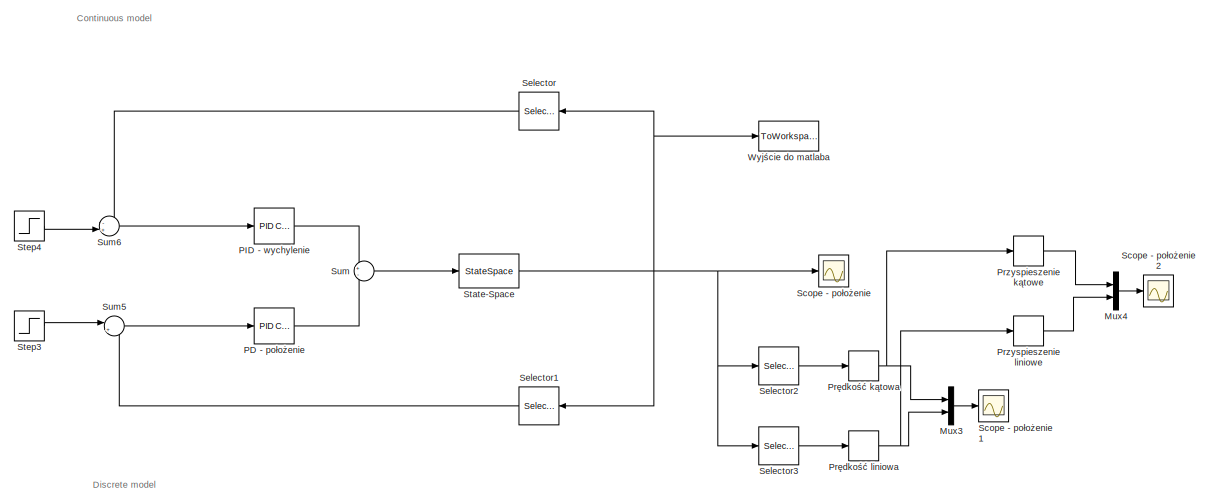
[diagram: root canvas - part 1/4, top center region]
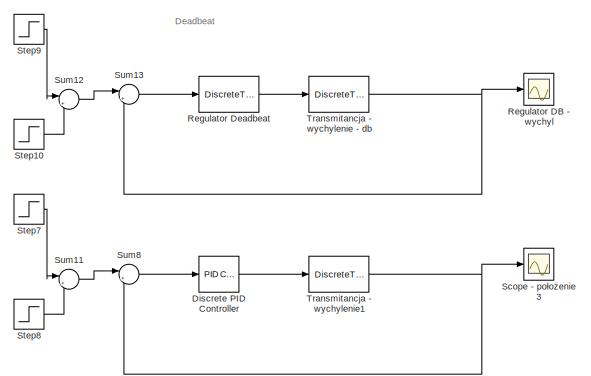
[diagram: root canvas - part 2/4, top right region]
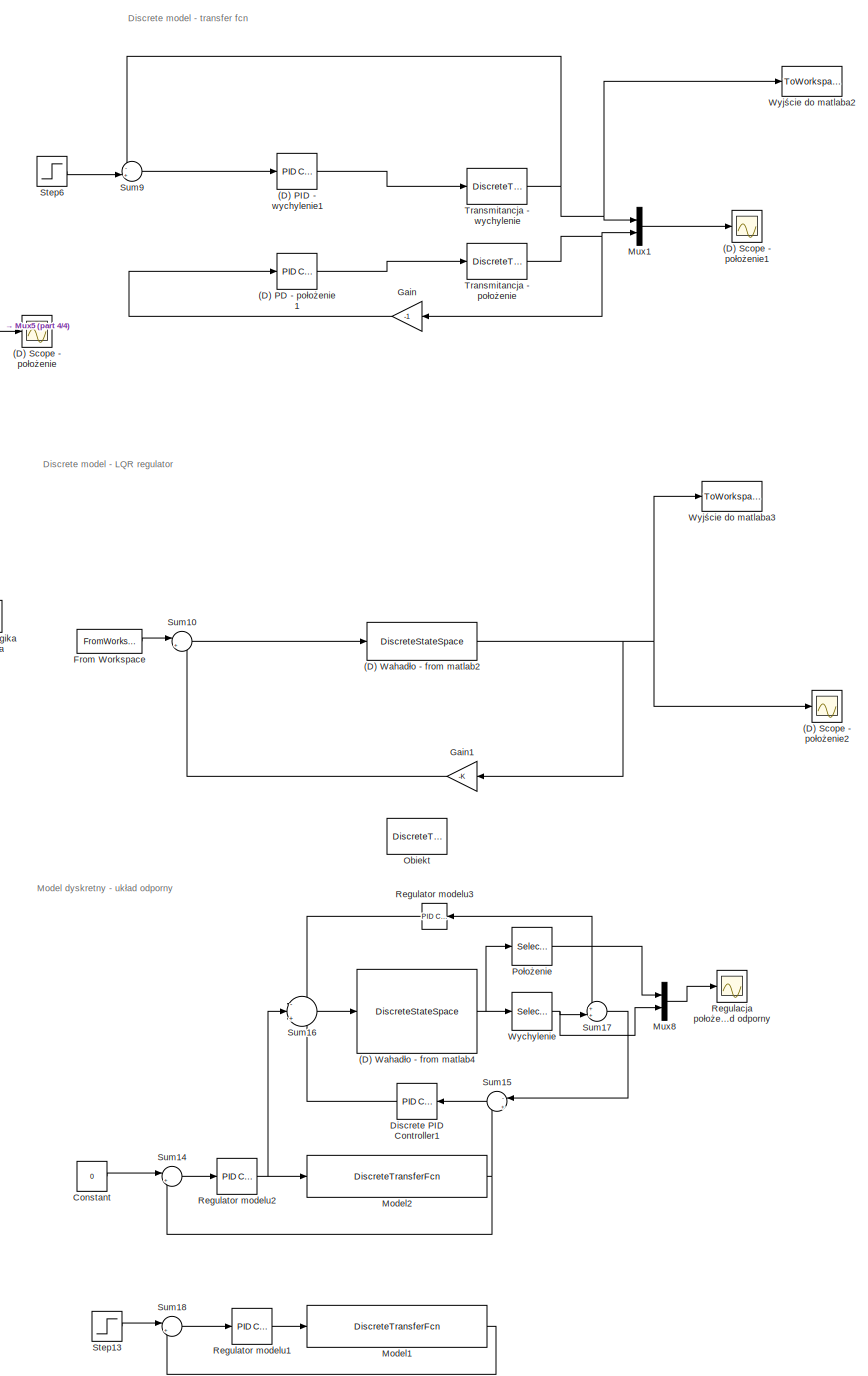
[diagram: root canvas - part 3/4, middle right region]
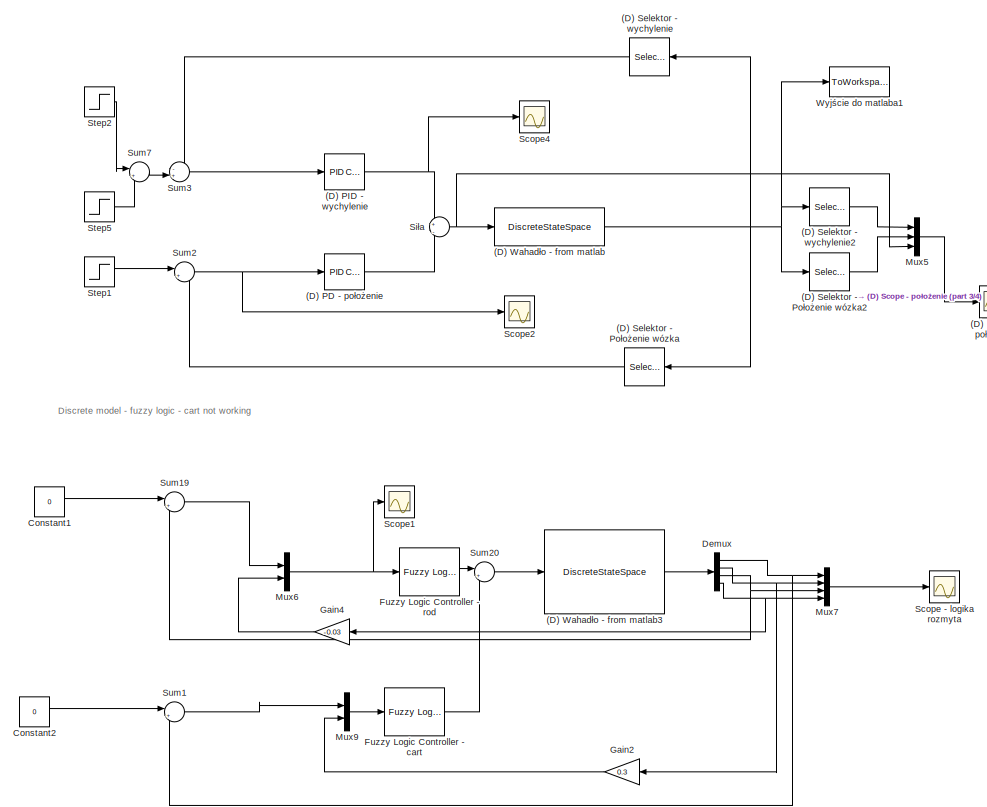
[diagram: root canvas - part 4/4, middle left region]
MODEL slx_b21ba78add9d
KIND model
CONFIG AbsTol = auto
CONFIG FixedStep = auto
CONFIG MaxStep = auto
CONFIG MinStep = auto
CONFIG RelTol = 1e-6
CONFIG SampleTimeConstraint = Unconstrained
CONFIG Solver = VariableStepAuto
CONFIG SolverMode = Auto
CONFIG SolverName = VariableStepAuto
CONFIG StartTime = 0.0
CONFIG StopTime = 50
BLOCK [Reference] (D) PD - położenie  REF=simulink/Continuous/PID Controller
  Ports = [1, 1]
  SourceBlock = simulink/Continuous/PID Controller
  SourceType = PID 1dof
BLOCK [Reference] (D) PD - położenie1  REF=simulink/Continuous/PID Controller
  Ports = [1, 1]
  SourceBlock = simulink/Continuous/PID Controller
  SourceType = PID 1dof
BLOCK [Reference] (D) PID - wychylenie  REF=simulink/Continuous/PID Controller
  Ports = [1, 1]
  SourceBlock = simulink/Continuous/PID Controller
  SourceType = PID 1dof
BLOCK [Reference] (D) PID - wychylenie1  REF=simulink/Continuous/PID Controller
  Ports = [1, 1]
  SourceBlock = simulink/Continuous/PID Controller
  SourceType = PID 1dof
BLOCK [Scope] (D) Scope - położenie
  Ports = [1]
  ScopeSpecificationString = Simulink.scopes.TimeScopeBlockCfg('CurrentConfiguration', extmgr.ConfigurationSet(extmgr.Configuration('Core','General UI',true),extmgr.Configuration('Core','Source UI',true),extmgr.Configuration('Sources','WiredSimulink',true),extmgr.Configuration('Visuals','Time Domain',true,'SerializedDisplays',{struct('MinYLimReal','-21.22504','MaxYLimReal','17.46773','YLabelReal','','MinYLimMag','0.00000','Ma...<+1471ch>
BLOCK [Scope] (D) Scope - położenie1
  Ports = [1]
  ScopeSpecificationString = Simulink.scopes.TimeScopeBlockCfg('CurrentConfiguration', extmgr.ConfigurationSet(extmgr.Configuration('Core','General UI',true),extmgr.Configuration('Core','Source UI',true),extmgr.Configuration('Sources','WiredSimulink',true,'DataLoggingVariableName','ScopeData3'),extmgr.Configuration('Visuals','Time Domain',true,'SerializedDisplays',{struct('MinYLimReal','-0.000000048','MaxYLimReal','0.00000000...<+1525ch>
BLOCK [Scope] (D) Scope - położenie2
  Ports = [1]
  ScopeSpecificationString = Simulink.scopes.TimeScopeBlockCfg('CurrentConfiguration', extmgr.ConfigurationSet(extmgr.Configuration('Core','General UI',true),extmgr.Configuration('Core','Source UI',true),extmgr.Configuration('Sources','WiredSimulink',true,'DataLoggingVariableName','ScopeData1'),extmgr.Configuration('Visuals','Time Domain',true,'SerializedDisplays',{struct('MinYLimReal','-3.85335','MaxYLimReal','1.69245','YLab...<+1560ch>
BLOCK [Selector] (D) Selektor - Położenie wózka
  IndexOptions = Index vector (dialog)
  Indices = 1
  InputPortWidth = 4
  OutputSizes = 1
  Ports = [1, 1]
BLOCK [Selector] (D) Selektor - Położenie wózka2
  IndexOptions = Index vector (dialog)
  Indices = 1
  InputPortWidth = 4
  OutputSizes = 1
  Ports = [1, 1]
BLOCK [Selector] (D) Selektor - wychylenie
  IndexOptions = Index vector (dialog)
  Indices = 3
  InputPortWidth = 4
  OutputSizes = 1
  Ports = [1, 1]
BLOCK [Selector] (D) Selektor - wychylenie2
  IndexOptions = Index vector (dialog)
  Indices = 3
  InputPortWidth = 4
  OutputSizes = 1
  Ports = [1, 1]
BLOCK [DiscreteStateSpace] (D) Wahadło - from matlab
  A = Ad
  B = Bd
  C = Cd
  D = Dd
  SampleTime = 0.01
  X0 = state0
BLOCK [DiscreteStateSpace] (D) Wahadło - from matlab2
  A = Ad
  B = Bd
  C = Cd
  D = Dd
  SampleTime = 0.01
  X0 = state0
BLOCK [DiscreteStateSpace] (D) Wahadło - from matlab3
  A = Ad
  B = Bd
  C = Cd
  D = Dd
  SampleTime = 0.01
  X0 = state0
BLOCK [DiscreteStateSpace] (D) Wahadło - from matlab4
  A = Ad
  B = Bd
  C = Cd
  D = Dd
  SampleTime = 0.01
  X0 = state0
BLOCK [Constant] Constant
  Value = 0
BLOCK [Constant] Constant1
  SampleTime = 0.01
  Value = 0
BLOCK [Constant] Constant2
  SampleTime = 0.01
  Value = 0
BLOCK [Demux] Demux
  DisplayOption = bar
  Ports = [1, 4]
BLOCK [Reference] Discrete PID Controller  REF=simulink/Continuous/PID Controller
  Ports = [1, 1]
  SourceBlock = simulink/Continuous/PID Controller
  SourceType = PID 1dof
BLOCK [Reference] Discrete PID Controller1  REF=simulink/Continuous/PID Controller
  Ports = [1, 1]
  SourceBlock = simulink/Continuous/PID Controller
  SourceType = PID 1dof
BLOCK [FromWorkspace] From Workspace
  SampleTime = 0.01
  VariableName = set_x
  ZeroCross = on
BLOCK [Reference] Fuzzy Logic Controller - cart  REF=fuzblock/Fuzzy Logic   (lib defined in mdl_858b3b3e7478)
Controller
  Ports = [1, 1]
  SourceBlock = fuzblock/Fuzzy Logic \nController
  SourceType = FIS
BLOCK [Reference] Fuzzy Logic Controller - rod  REF=fuzblock/Fuzzy Logic   (lib defined in mdl_858b3b3e7478)
Controller
  Ports = [1, 1]
  SourceBlock = fuzblock/Fuzzy Logic \nController
  SourceType = FIS
BLOCK [Gain] Gain
  Gain = -1
  OutDataTypeStr = Inherit: Inherit via internal rule
  ParamDataTypeStr = Inherit: Inherit via internal rule
  SaturateOnIntegerOverflow = off
BLOCK [Gain] Gain1
  Gain = -K
  Multiplication = Matrix(K*u)
  OutDataTypeStr = Inherit: Inherit via internal rule
  ParamDataTypeStr = Inherit: Inherit via internal rule
  SaturateOnIntegerOverflow = off
BLOCK [Gain] Gain2
  Gain = 0.3
  OutDataTypeStr = Inherit: Inherit via internal rule
  ParamDataTypeStr = Inherit: Inherit via internal rule
  SaturateOnIntegerOverflow = off
BLOCK [Gain] Gain4
  Gain = -0.03
  OutDataTypeStr = Inherit: Inherit via internal rule
  ParamDataTypeStr = Inherit: Inherit via internal rule
  SaturateOnIntegerOverflow = off
BLOCK [DiscreteTransferFcn] Model1
  Denominator = [1 -0.4]
  InputPortMap = u0
  Numerator = [0.1]
  Ports = [1, 1]
  SampleTime = 0.01
BLOCK [DiscreteTransferFcn] Model2
  Denominator = [1 -0.4]
  InputPortMap = u0
  Numerator = [0.1]
  Ports = [1, 1]
  SampleTime = 0.01
BLOCK [Mux] Mux1
  DisplayOption = bar
  Inputs = 2
  Ports = [2, 1]
BLOCK [Mux] Mux3
  DisplayOption = bar
  Inputs = 2
  Ports = [2, 1]
BLOCK [Mux] Mux4
  DisplayOption = bar
  Inputs = 2
  Ports = [2, 1]
BLOCK [Mux] Mux5
  DisplayOption = bar
  Inputs = 3
  Ports = [3, 1]
BLOCK [Mux] Mux6
  DisplayOption = bar
  Inputs = 2
  Ports = [2, 1]
BLOCK [Mux] Mux7
  DisplayOption = bar
  Ports = [4, 1]
BLOCK [Mux] Mux8
  DisplayOption = bar
  Inputs = 2
  Ports = [2, 1]
BLOCK [Mux] Mux9
  DisplayOption = bar
  Inputs = 2
  Ports = [2, 1]
BLOCK [DiscreteTransferFcn] Obiekt
  Denominator = Md
  InputPortMap = u0
  Numerator = Lwd
  Ports = [1, 1]
  SampleTime = 0.01
BLOCK [Reference] PD - położenie  REF=simulink/Continuous/PID Controller
  Ports = [1, 1]
  SourceBlock = simulink/Continuous/PID Controller
  SourceType = PID 1dof
BLOCK [Reference] PID - wychylenie  REF=simulink/Continuous/PID Controller
  Ports = [1, 1]
  SourceBlock = simulink/Continuous/PID Controller
  SourceType = PID 1dof
BLOCK [Selector] Położenie
  IndexOptions = Index vector (dialog)
  Indices = 1
  InputPortWidth = 4
  OutputSizes = 1
  Ports = [1, 1]
BLOCK [Derivative] Przyspieszenie kątowe
BLOCK [Derivative] Przyspieszenie liniowe
BLOCK [Derivative] Prędkość kątowa
BLOCK [Derivative] Prędkość liniowa
BLOCK [Scope] Regulacja położenia - układ odporny
  Ports = [1]
  ScopeSpecificationString = Simulink.scopes.TimeScopeBlockCfg('CurrentConfiguration', extmgr.ConfigurationSet(extmgr.Configuration('Core','General UI',true),extmgr.Configuration('Core','Source UI',true),extmgr.Configuration('Sources','WiredSimulink',true,'DataLoggingVariableName','ScopeData1'),extmgr.Configuration('Visuals','Time Domain',true,'SerializedDisplays',{struct('MinYLimReal','-0.67679','MaxYLimReal','0.70275','YLab...<+1456ch>
BLOCK [Scope] Regulator DB - wychyl
  Ports = [1]
  ScopeSpecificationString = Simulink.scopes.TimeScopeBlockCfg('CurrentConfiguration', extmgr.ConfigurationSet(extmgr.Configuration('Core','General UI',true),extmgr.Configuration('Core','Source UI',true),extmgr.Configuration('Sources','WiredSimulink',true,'DataLoggingVariableName','ScopeData1'),extmgr.Configuration('Visuals','Time Domain',true,'SerializedDisplays',{struct('MinYLimReal','-73183958886695843000000000000000000000...<+3744ch>
BLOCK [DiscreteTransferFcn] Regulator Deadbeat
  Denominator = M_db
  InputPortMap = u0
  Numerator = L_db
  Ports = [1, 1]
  SampleTime = 0.01
BLOCK [Reference] Regulator modelu1  REF=simulink/Continuous/PID Controller
  Ports = [1, 1]
  SourceBlock = simulink/Continuous/PID Controller
  SourceType = PID 1dof
BLOCK [Reference] Regulator modelu2  REF=simulink/Continuous/PID Controller
  Ports = [1, 1]
  SourceBlock = simulink/Continuous/PID Controller
  SourceType = PID 1dof
BLOCK [Reference] Regulator modelu3  REF=simulink/Continuous/PID Controller
  Ports = [1, 1]
  SourceBlock = simulink/Continuous/PID Controller
  SourceType = PID 1dof
BLOCK [Scope] Scope - logika rozmyta
  Ports = [1]
  ScopeSpecificationString = Simulink.scopes.TimeScopeBlockCfg('CurrentConfiguration', extmgr.ConfigurationSet(extmgr.Configuration('Core','General UI',true),extmgr.Configuration('Core','Source UI',true),extmgr.Configuration('Sources','WiredSimulink',true,'DataLoggingVariableName','ScopeData2'),extmgr.Configuration('Visuals','Time Domain',true,'SerializedDisplays',{struct('MinYLimReal','-4.88762','MaxYLimReal','2.01379','YLab...<+1502ch>
BLOCK [Scope] Scope - położenie
  Ports = [1]
  ScopeSpecificationString = Simulink.scopes.TimeScopeBlockCfg('CurrentConfiguration', extmgr.ConfigurationSet(extmgr.Configuration('Core','General UI',true),extmgr.Configuration('Core','Source UI',true),extmgr.Configuration('Sources','WiredSimulink',true,'DataLoggingVariableName','ScopeData1'),extmgr.Configuration('Visuals','Time Domain',true,'SerializedDisplays',{struct('MinYLimReal','2.54189','MaxYLimReal','2.63242','YLabe...<+1496ch>
BLOCK [Scope] Scope - położenie1
  Ports = [1]
  ScopeSpecificationString = Simulink.scopes.TimeScopeBlockCfg('CurrentConfiguration', extmgr.ConfigurationSet(extmgr.Configuration('Core','General UI',true),extmgr.Configuration('Core','Source UI',true),extmgr.Configuration('Sources','WiredSimulink',true,'DataLoggingVariableName','ScopeData2'),extmgr.Configuration('Visuals','Time Domain',true,'SerializedDisplays',{struct('MinYLimReal','-9.98806','MaxYLimReal','3.97848','YLab...<+1464ch>
BLOCK [Scope] Scope - położenie2
  Ports = [1]
  ScopeSpecificationString = Simulink.scopes.TimeScopeBlockCfg('CurrentConfiguration', extmgr.ConfigurationSet(extmgr.Configuration('Core','General UI',true),extmgr.Configuration('Core','Source UI',true),extmgr.Configuration('Sources','WiredSimulink',true,'DataLoggingVariableName','ScopeData3'),extmgr.Configuration('Visuals','Time Domain',true,'SerializedDisplays',{struct('MinYLimReal','-29983.54642','MaxYLimReal','11932.1517...<+1510ch>
BLOCK [Scope] Scope - położenie3
  Ports = [1]
  ScopeSpecificationString = Simulink.scopes.TimeScopeBlockCfg('CurrentConfiguration', extmgr.ConfigurationSet(extmgr.Configuration('Core','General UI',true),extmgr.Configuration('Core','Source UI',true),extmgr.Configuration('Sources','WiredSimulink',true,'DataLoggingVariableName','ScopeData1'),extmgr.Configuration('Visuals','Time Domain',true,'SerializedDisplays',{struct('MinYLimReal','-0.0534','MaxYLimReal','0.48063','YLabe...<+1438ch>
BLOCK [Scope] Scope1
  Ports = [1]
  ScopeSpecificationString = Simulink.scopes.TimeScopeBlockCfg('CurrentConfiguration', extmgr.ConfigurationSet(extmgr.Configuration('Core','General UI',true),extmgr.Configuration('Core','Source UI',true),extmgr.Configuration('Sources','WiredSimulink',true,'DataLoggingVariableName','ScopeData2'),extmgr.Configuration('Visuals','Time Domain',true,'SerializedDisplays',{struct('MinYLimReal','-0.36917','MaxYLimReal','0.18093','YLab...<+1433ch>
BLOCK [Scope] Scope2
  Ports = [1]
  ScopeSpecificationString = Simulink.scopes.TimeScopeBlockCfg('CurrentConfiguration', extmgr.ConfigurationSet(extmgr.Configuration('Core','General UI',true),extmgr.Configuration('Core','Source UI',true),extmgr.Configuration('Sources','WiredSimulink',true,'DataLoggingVariableName','ScopeData1'),extmgr.Configuration('Visuals','Time Domain',true,'SerializedDisplays',{struct('MinYLimReal','-0.14658','MaxYLimReal','0.03379','YLab...<+1436ch>
BLOCK [Scope] Scope4
  Ports = [1]
  ScopeSpecificationString = Simulink.scopes.TimeScopeBlockCfg('CurrentConfiguration', extmgr.ConfigurationSet(extmgr.Configuration('Core','General UI',true),extmgr.Configuration('Core','Source UI',true),extmgr.Configuration('Sources','WiredSimulink',true,'DataLoggingVariableName','ScopeData3'),extmgr.Configuration('Visuals','Time Domain',true,'SerializedDisplays',{struct('MinYLimReal','-199.08141','MaxYLimReal','266.84295','...<+1466ch>
BLOCK [Selector] Selector
  IndexOptions = Index vector (dialog)
  Indices = 3
  InputPortWidth = 4
  OutputSizes = 1
  Ports = [1, 1]
BLOCK [Selector] Selector1
  IndexOptions = Index vector (dialog)
  Indices = 1
  InputPortWidth = 4
  OutputSizes = 1
  Ports = [1, 1]
BLOCK [Selector] Selector2
  IndexOptions = Index vector (dialog)
  Indices = 3
  InputPortWidth = 4
  OutputSizes = 1
  Ports = [1, 1]
BLOCK [Selector] Selector3
  IndexOptions = Index vector (dialog)
  Indices = 1
  InputPortWidth = 4
  OutputSizes = 1
  Ports = [1, 1]
BLOCK [Sum] Siła
  IconShape = round
  InputSameDT = off
  Inputs = +|-
  OutDataTypeStr = Inherit: Inherit via internal rule
  Ports = [2, 1]
  SaturateOnIntegerOverflow = off
BLOCK [StateSpace] State-Space
  A = A
  B = B
  C = C
  D = D
  Ports = [1, 1]
  X0 = state0
BLOCK [Step] Step1
  After = 0
  SampleTime = 0.01
  Time = 0
BLOCK [Step] Step10
  After = pi/10
  SampleTime = 0.01
  Time = 0
BLOCK [Step] Step13
  After = pi/10
  SampleTime = 0.01
  Time = 0
BLOCK [Step] Step2
  After = 0
  SampleTime = 0
BLOCK [Step] Step3
  After = 0
  SampleTime = 0
  Time = 0
BLOCK [Step] Step4
  After = 0
  SampleTime = 0
  Time = 0
BLOCK [Step] Step5
  After = 0
  SampleTime = 0
  Time = 0
BLOCK [Step] Step6
  After = 0
  SampleTime = 0.01
BLOCK [Step] Step7
  After = 0
  Before = pi/10
  SampleTime = 0.01
  Time = 0
BLOCK [Step] Step8
  After = pi/10
  SampleTime = 0.01
  Time = 0
BLOCK [Step] Step9
  After = 0
  Before = pi/10
  SampleTime = 0.01
  Time = 0
BLOCK [Sum] Sum
  IconShape = round
  InputSameDT = off
  Inputs = +-
  OutDataTypeStr = Inherit: Inherit via internal rule
  Ports = [2, 1]
  SaturateOnIntegerOverflow = off
BLOCK [Sum] Sum1
  IconShape = round
  InputSameDT = off
  Inputs = |++
  OutDataTypeStr = Inherit: Inherit via internal rule
  Ports = [2, 1]
  SaturateOnIntegerOverflow = off
BLOCK [Sum] Sum10
  IconShape = round
  InputSameDT = off
  Inputs = |++
  OutDataTypeStr = Inherit: Inherit via internal rule
  Ports = [2, 1]
  SaturateOnIntegerOverflow = off
BLOCK [Sum] Sum11
  IconShape = round
  InputSameDT = off
  Inputs = |++
  OutDataTypeStr = Inherit: Inherit via internal rule
  Ports = [2, 1]
  SaturateOnIntegerOverflow = off
BLOCK [Sum] Sum12
  IconShape = round
  InputSameDT = off
  Inputs = |++
  OutDataTypeStr = Inherit: Inherit via internal rule
  Ports = [2, 1]
  SaturateOnIntegerOverflow = off
BLOCK [Sum] Sum13
  IconShape = round
  InputSameDT = off
  Inputs = |+-
  OutDataTypeStr = Inherit: Inherit via internal rule
  Ports = [2, 1]
  SaturateOnIntegerOverflow = off
BLOCK [Sum] Sum14
  IconShape = round
  InputSameDT = off
  Inputs = |+-
  OutDataTypeStr = Inherit: Inherit via internal rule
  Ports = [2, 1]
  SaturateOnIntegerOverflow = off
BLOCK [Sum] Sum15
  IconShape = round
  InputSameDT = off
  Inputs = -|+
  OutDataTypeStr = Inherit: Inherit via internal rule
  Ports = [2, 1]
  SaturateOnIntegerOverflow = off
BLOCK [Sum] Sum16
  IconShape = round
  InputSameDT = off
  Inputs = -|+|+
  OutDataTypeStr = Inherit: Inherit via internal rule
  Ports = [3, 1]
  SaturateOnIntegerOverflow = off
BLOCK [Sum] Sum17
  IconShape = round
  InputSameDT = off
  Inputs = ++|
  OutDataTypeStr = Inherit: Inherit via internal rule
  Ports = [2, 1]
  SaturateOnIntegerOverflow = off
BLOCK [Sum] Sum18
  IconShape = round
  InputSameDT = off
  Inputs = |+-
  OutDataTypeStr = Inherit: Inherit via internal rule
  Ports = [2, 1]
  SaturateOnIntegerOverflow = off
BLOCK [Sum] Sum19
  IconShape = round
  InputSameDT = off
  Inputs = |+-
  OutDataTypeStr = Inherit: Inherit via internal rule
  Ports = [2, 1]
  SaturateOnIntegerOverflow = off
BLOCK [Sum] Sum2
  IconShape = round
  InputSameDT = off
  Inputs = |+-
  OutDataTypeStr = Inherit: Inherit via internal rule
  Ports = [2, 1]
  SaturateOnIntegerOverflow = off
BLOCK [Sum] Sum20
  IconShape = round
  InputSameDT = off
  Inputs = |+-
  OutDataTypeStr = Inherit: Inherit via internal rule
  Ports = [2, 1]
  SaturateOnIntegerOverflow = off
BLOCK [Sum] Sum3
  IconShape = round
  InputSameDT = off
  Inputs = -+|
  OutDataTypeStr = Inherit: Inherit via internal rule
  Ports = [2, 1]
  SaturateOnIntegerOverflow = off
BLOCK [Sum] Sum5
  IconShape = round
  InputSameDT = off
  Inputs = |+-
  OutDataTypeStr = Inherit: Inherit via internal rule
  Ports = [2, 1]
  SaturateOnIntegerOverflow = off
BLOCK [Sum] Sum6
  IconShape = round
  InputSameDT = off
  Inputs = -+|
  OutDataTypeStr = Inherit: Inherit via internal rule
  Ports = [2, 1]
  SaturateOnIntegerOverflow = off
BLOCK [Sum] Sum7
  IconShape = round
  InputSameDT = off
  Inputs = |++
  OutDataTypeStr = Inherit: Inherit via internal rule
  Ports = [2, 1]
  SaturateOnIntegerOverflow = off
BLOCK [Sum] Sum8
  IconShape = round
  InputSameDT = off
  Inputs = |+-
  OutDataTypeStr = Inherit: Inherit via internal rule
  Ports = [2, 1]
  SaturateOnIntegerOverflow = off
BLOCK [Sum] Sum9
  IconShape = round
  InputSameDT = off
  Inputs = -+|
  OutDataTypeStr = Inherit: Inherit via internal rule
  Ports = [2, 1]
  SaturateOnIntegerOverflow = off
BLOCK [DiscreteTransferFcn] Transmitancja - położenie
  Denominator = Md
  InputPortMap = u0
  Numerator = Lwd
  Ports = [1, 1]
  SampleTime = 0.01
BLOCK [DiscreteTransferFcn] Transmitancja - wychylenie
  Denominator = Den_d
  InitialStates = 0.316
  InputPortMap = u0
  Numerator = Num_d
  Ports = [1, 1]
  SampleTime = 0.01
BLOCK [DiscreteTransferFcn] Transmitancja - wychylenie - db
  Denominator = Md
  InputPortMap = u0
  Numerator = Lwd
  Ports = [1, 1]
  SampleTime = 0.01
BLOCK [DiscreteTransferFcn] Transmitancja - wychylenie1
  Denominator = Md
  InputPortMap = u0
  Numerator = Lwd
  Ports = [1, 1]
  SampleTime = 0.01
BLOCK [Selector] Wychylenie
  IndexOptions = Index vector (dialog)
  Indices = 3
  InputPortWidth = 4
  OutputSizes = 1
  Ports = [1, 1]
BLOCK [ToWorkspace] Wyjście do matlaba
  FixptAsFi = on
  MaxDataPoints = inf
  Ports = [1]
  SampleTime = -1
  Save2DSignal = 3-D array (concatenate along third dimension)
  VariableName = y
BLOCK [ToWorkspace] Wyjście do matlaba1
  FixptAsFi = on
  MaxDataPoints = inf
  Ports = [1]
  SampleTime = -1
  Save2DSignal = 3-D array (concatenate along third dimension)
  VariableName = y1
BLOCK [ToWorkspace] Wyjście do matlaba2
  FixptAsFi = on
  MaxDataPoints = inf
  Ports = [1]
  SampleTime = -1
  Save2DSignal = 3-D array (concatenate along third dimension)
  VariableName = y2
BLOCK [ToWorkspace] Wyjście do matlaba3
  FixptAsFi = on
  MaxDataPoints = inf
  Ports = [1]
  SampleTime = -1
  Save2DSignal = 3-D array (concatenate along third dimension)
  VariableName = y3
ANNOTATION (root): Model dyskretny - układ odporny
ANNOTATION (root): Continuous model
ANNOTATION (root): Discrete model - LQR regulator
ANNOTATION (root): Discrete model - fuzzy logic - cart not working
ANNOTATION (root): Discrete model
ANNOTATION (root): Deadbeat
ANNOTATION (root): Discrete model - transfer fcn
LINE (D) PD - położenie1:1 -> Transmitancja - położenie:1
LINE (D) PD - położenie:1 -> Siła:2
LINE (D) PID - wychylenie1:1 -> Transmitancja - wychylenie:1
NET (D) PID - wychylenie:1 -> Scope4:1, Siła:1
LINE (D) Selektor - Położenie wózka2:1 -> Mux5:2
LINE (D) Selektor - Położenie wózka:1 -> Sum2:2
LINE (D) Selektor - wychylenie2:1 -> Mux5:1
LINE (D) Selektor - wychylenie:1 -> Sum3:1
NET (D) Wahadło - from matlab2:1 -> (D) Scope - położenie2:1, Gain1:1, Wyjście do matlaba3:1
LINE (D) Wahadło - from matlab3:1 -> Demux:1
NET (D) Wahadło - from matlab4:1 -> Położenie:1, Wychylenie:1
NET (D) Wahadło - from matlab:1 -> (D) Selektor - Położenie wózka2:1, (D) Selektor - Położenie wózka:1, (D) Selektor - wychylenie2:1, (D) Selektor - wychylenie:1, Wyjście do matlaba1:1
LINE Constant1:1 -> Sum19:1
LINE Constant2:1 -> Sum1:1
LINE Constant:1 -> Sum14:1
NET Demux:1 -> Mux7:1, Sum1:2
NET Demux:2 -> Gain2:1, Mux7:2
NET Demux:3 -> Mux7:3, Sum19:2
NET Demux:4 -> Gain4:1, Mux7:4
LINE Discrete PID Controller1:1 -> Sum16:3
LINE Discrete PID Controller:1 -> Transmitancja - wychylenie1:1
LINE From Workspace:1 -> Sum10:1
LINE Fuzzy Logic Controller - cart:1 -> Sum20:2
LINE Fuzzy Logic Controller - rod:1 -> Sum20:1
LINE Gain1:1 -> Sum10:2
LINE Gain2:1 -> Mux9:2
LINE Gain4:1 -> Mux6:2
LINE Gain:1 -> (D) PD - położenie1:1
LINE Model1:1 -> Sum18:2
NET Model2:1 -> Sum14:2, Sum15:2
LINE Mux1:1 -> (D) Scope - położenie1:1
LINE Mux3:1 -> Scope - położenie1:1
LINE Mux4:1 -> Scope - położenie2:1
LINE Mux5:1 -> (D) Scope - położenie:1
NET Mux6:1 -> Fuzzy Logic Controller - rod:1, Scope1:1
LINE Mux7:1 -> Scope - logika rozmyta:1
LINE Mux8:1 -> Regulacja położenia - układ odporny:1
LINE Mux9:1 -> Fuzzy Logic Controller - cart:1
LINE PD - położenie:1 -> Sum:2
LINE PID - wychylenie:1 -> Sum:1
NET Położenie:1 -> Mux8:1, Regulator modelu3:1, Sum17:1
LINE Przyspieszenie kątowe:1 -> Mux4:1
LINE Przyspieszenie liniowe:1 -> Mux4:2
NET Prędkość kątowa:1 -> Mux3:1, Przyspieszenie kątowe:1
NET Prędkość liniowa:1 -> Mux3:2, Przyspieszenie liniowe:1
LINE Regulator Deadbeat:1 -> Transmitancja - wychylenie - db:1
LINE Regulator modelu1:1 -> Model1:1
NET Regulator modelu2:1 -> Model2:1, Sum16:2
LINE Regulator modelu3:1 -> Sum16:1
LINE Selector1:1 -> Sum5:2
LINE Selector2:1 -> Prędkość kątowa:1
LINE Selector3:1 -> Prędkość liniowa:1
LINE Selector:1 -> Sum6:1
NET Siła:1 -> (D) Wahadło - from matlab:1, Mux5:3
NET State-Space:1 -> Scope - położenie:1, Selector1:1, Selector2:1, Selector3:1, Selector:1, Wyjście do matlaba:1
LINE Step10:1 -> Sum12:2
LINE Step13:1 -> Sum18:1
LINE Step1:1 -> Sum2:1
LINE Step2:1 -> Sum7:1
LINE Step3:1 -> Sum5:1
LINE Step4:1 -> Sum6:2
LINE Step5:1 -> Sum7:2
LINE Step6:1 -> Sum9:2
LINE Step7:1 -> Sum11:1
LINE Step8:1 -> Sum11:2
LINE Step9:1 -> Sum12:1
LINE Sum10:1 -> (D) Wahadło - from matlab2:1
LINE Sum11:1 -> Sum8:1
LINE Sum12:1 -> Sum13:1
LINE Sum13:1 -> Regulator Deadbeat:1
LINE Sum14:1 -> Regulator modelu2:1
LINE Sum15:1 -> Discrete PID Controller1:1
LINE Sum16:1 -> (D) Wahadło - from matlab4:1
LINE Sum17:1 -> Sum15:1
LINE Sum18:1 -> Regulator modelu1:1
LINE Sum19:1 -> Mux6:1
LINE Sum1:1 -> Mux9:1
LINE Sum20:1 -> (D) Wahadło - from matlab3:1
NET Sum2:1 -> (D) PD - położenie:1, Scope2:1
LINE Sum3:1 -> (D) PID - wychylenie:1
LINE Sum5:1 -> PD - położenie:1
LINE Sum6:1 -> PID - wychylenie:1
LINE Sum7:1 -> Sum3:2
LINE Sum8:1 -> Discrete PID Controller:1
LINE Sum9:1 -> (D) PID - wychylenie1:1
LINE Sum:1 -> State-Space:1
NET Transmitancja - położenie:1 -> Gain:1, Mux1:2
NET Transmitancja - wychylenie - db:1 -> Regulator DB - wychyl:1, Sum13:2
NET Transmitancja - wychylenie1:1 -> Scope - położenie3:1, Sum8:2
NET Transmitancja - wychylenie:1 -> Mux1:1, Sum9:1, Wyjście do matlaba2:1
NET Wychylenie:1 -> Mux8:2, Sum17:2
note: NET lines group one-source signal fan-out (src -> all destinations, sorted); 1:1 wires keep LINE
